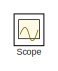
[diagram: root canvas - part 1/3, top left region]
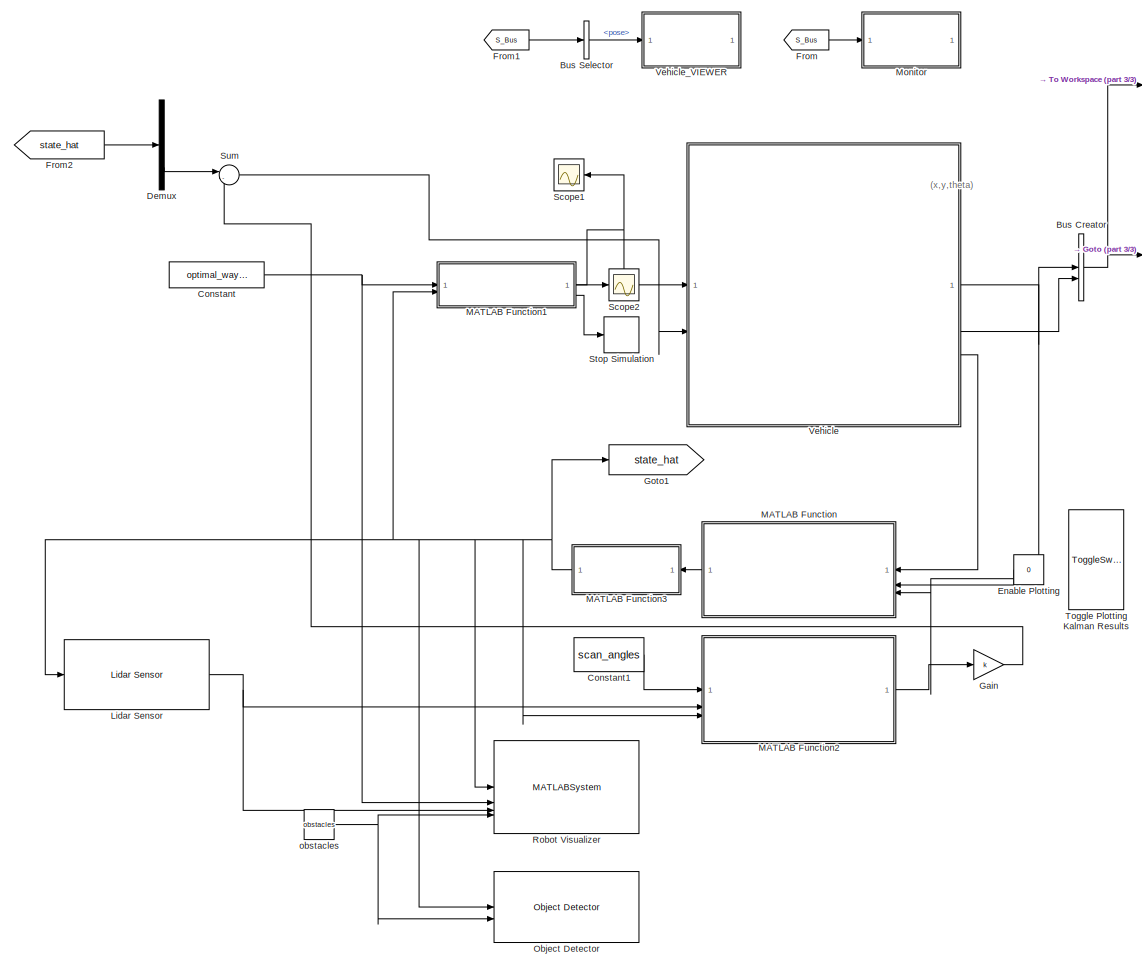
[diagram: root canvas - part 2/3, most of the canvas]
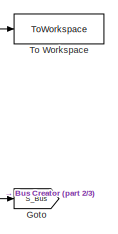
[diagram: root canvas - part 3/3, top right region]
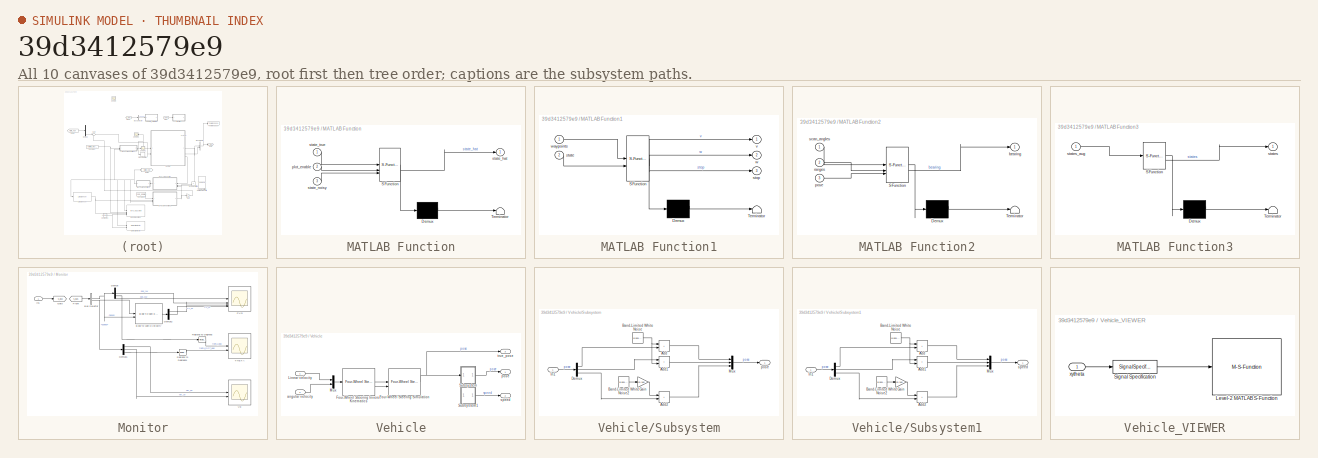
[diagram: thumbnail index - all 10 canvases of the model, root first then tree order]
MODEL slx_39d3412579e9
KIND model
CONFIG AbsTol = auto
CONFIG EnableMultiTasking = on
CONFIG FixedStep = auto
CONFIG InitFcn = mdl_robot;
CONFIG MaxStep = auto
CONFIG MinStep = auto
CONFIG RelTol = 1e-5
CONFIG SampleTimeConstraint = Unconstrained
CONFIG SolverName = ode45
CONFIG StartTime = 0.0
CONFIG StopTime = 2000
BLOCK [BusCreator] Bus Creator
  DisplayOption = bar
  InheritFromInputs = on
  Inputs = 2
BLOCK [BusSelector] Bus Selector
  Commented = on
  OutputSignals = pose
BLOCK [Constant] Constant
  Value = optimal_waypoints
BLOCK [Constant] Constant1
  Value = scan_angles
BLOCK [Demux] Demux
  Outputs = 3
BLOCK [Constant] Enable Plotting
  NameLocation = top
  Value = 0
BLOCK [From] From
  GotoTag = S_Bus
BLOCK [From] From1
  Commented = on
  GotoTag = S_Bus
BLOCK [From] From2
  GotoTag = state_hat
BLOCK [Gain] Gain
  Gain = k
BLOCK [Goto] Goto
  GotoTag = S_Bus
BLOCK [Goto] Goto1
  GotoTag = state_hat
BLOCK [Reference] Lidar Sensor  REF=mobileRoboticsLib/Environments/Lidar Sensor
  SourceBlock = mobileRoboticsLib/Environments/Lidar Sensor
  SourceProductName = Mobile Robotics Simulation Toolbox
  SourceType = LidarSensor
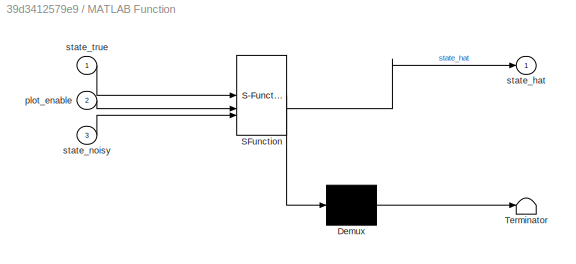
BLOCK [SubSystem] MATLAB Function
  ErrorFcn = Stateflow.Translate.translate
  NameLocation = top
  PermitHierarchicalResolution = ExplicitOnly
  SFBlockType = MATLAB Function
  TreatAsAtomicUnit = on
BLOCK [Demux] MATLAB Function/ Demux 
  Outputs = 1
BLOCK [S-Function] MATLAB Function/ SFunction 
  EnableBusSupport = off
  FunctionName = sf_sfun
  PortCounts = [3 2]
  SFcnIsStateOwnerBlock = off
  SFunctionDeploymentMode = off
  Tag = Stateflow S-Function 1
BLOCK [Terminator] MATLAB Function/ Terminator 
BLOCK [Inport] MATLAB Function/plot_enable
  Port = 2
BLOCK [Outport] MATLAB Function/state_hat
BLOCK [Inport] MATLAB Function/state_noisy
  Port = 3
BLOCK [Inport] MATLAB Function/state_true
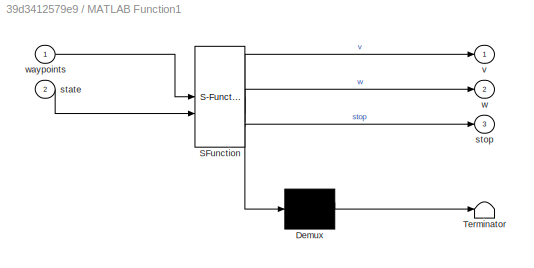
BLOCK [SubSystem] MATLAB Function1
  ErrorFcn = Stateflow.Translate.translate
  PermitHierarchicalResolution = ExplicitOnly
  SFBlockType = MATLAB Function
  TreatAsAtomicUnit = on
BLOCK [Demux] MATLAB Function1/ Demux 
  Outputs = 1
BLOCK [S-Function] MATLAB Function1/ SFunction 
  EnableBusSupport = off
  FunctionName = sf_sfun
  PortCounts = [2 4]
  SFcnIsStateOwnerBlock = off
  SFunctionDeploymentMode = off
  Tag = Stateflow S-Function 2
BLOCK [Terminator] MATLAB Function1/ Terminator 
BLOCK [Inport] MATLAB Function1/state
  Port = 2
BLOCK [Outport] MATLAB Function1/stop
  Port = 3
BLOCK [Outport] MATLAB Function1/v
BLOCK [Outport] MATLAB Function1/w
  Port = 2
BLOCK [Inport] MATLAB Function1/waypoints
BLOCK [SubSystem] MATLAB Function2
  ErrorFcn = Stateflow.Translate.translate
  PermitHierarchicalResolution = ExplicitOnly
  SFBlockType = MATLAB Function
  TreatAsAtomicUnit = on
BLOCK [Demux] MATLAB Function2/ Demux 
  Outputs = 1
BLOCK [S-Function] MATLAB Function2/ SFunction 
  EnableBusSupport = off
  FunctionName = sf_sfun
  PortCounts = [3 2]
  SFcnIsStateOwnerBlock = off
  SFunctionDeploymentMode = off
  Tag = Stateflow S-Function 3
BLOCK [Terminator] MATLAB Function2/ Terminator 
BLOCK [Outport] MATLAB Function2/bearing
BLOCK [Inport] MATLAB Function2/pose
  Port = 3
BLOCK [Inport] MATLAB Function2/ranges
  Port = 2
BLOCK [Inport] MATLAB Function2/scan_angles
BLOCK [SubSystem] MATLAB Function3
  ErrorFcn = Stateflow.Translate.translate
  NameLocation = top
  PermitHierarchicalResolution = ExplicitOnly
  SFBlockType = MATLAB Function
  TreatAsAtomicUnit = on
BLOCK [Demux] MATLAB Function3/ Demux 
  Outputs = 1
BLOCK [S-Function] MATLAB Function3/ SFunction 
  EnableBusSupport = off
  FunctionName = sf_sfun
  PortCounts = [1 2]
  SFcnIsStateOwnerBlock = off
  SFunctionDeploymentMode = off
  Tag = Stateflow S-Function 4
BLOCK [Terminator] MATLAB Function3/ Terminator 
BLOCK [Outport] MATLAB Function3/states
BLOCK [Inport] MATLAB Function3/states_aug
BLOCK [SubSystem] Monitor
  NameLocation = top
BLOCK [Reference] Monitor/Body to World Velocity  REF=mobileRoboticsLib/Utilities/Body to World Velocity
  SourceBlock = mobileRoboticsLib/Utilities/Body to World Velocity
  SourceProductName = Mobile Robotics Simulation Toolbox
  SourceType = Body to World Velocity
BLOCK [BusSelector] Monitor/Bus Selector
  OutputSignals = pose,speed
BLOCK [Demux] Monitor/Demux
  Outputs = 3
BLOCK [Demux] Monitor/Demux1
  Outputs = 3
BLOCK [Demux] Monitor/Demux2
  Outputs = 3
BLOCK [From] Monitor/From
  GotoTag = S_Bus
BLOCK [Goto] Monitor/Goto
  GotoTag = S_Bus
BLOCK [Inport] Monitor/In1
BLOCK [Scope] Monitor/PVG
  ActiveDisplayYMaximum = 27.3548
  ActiveDisplayYMinimum = -3.0236
  DataLoggingVariableName = ScopeData1
  Floating = off
  GraphicalSettings = {"GraphicalSettings":{"LegacySettings":true,"Style":{"AxesScalingProperties":{"AlignXAxis":"Center","AlignYAxis":"Center","AutoScaleXAxisLimits":true,"AxesScaling":"Manual","AxesScalingNumUpdates":10,"ScaleAxesLimitsAtStop":false,"XAxisDataRange":100,"YAxisDataRange":80},"Style":{"AxesColor":"[0 0 0]","ChannelNames":["","","",""],"ColorOrder":"[1 0.909803921568627 0.392156862745098;0.1490196078431...<+769ch>
  LayoutDimensionsString = [2 2]
  MultipleDisplayCache = [{"MaxYLimMag":27.3548,"MaxYLimReal":27.3548,"MinYLimMag":0,"MinYLimReal":-3.0236,"PlotAsMagnitudePhase":false,"ShowGrid":true,"ShowLegend":false,"Title":"%<SignalLabel>","YLabel":""},{"MaxYLimMag":10,"MaxYLimReal":6.3182,"MinYLimMag":0,"MinYLimReal":-0.92897,"PlotAsMagnitudePhase":false,"ShowGrid":true,"ShowLegend":false,"Title":"%<SignalLabel>","YLabel":""},{"MaxYLimMag":10,"MaxYLimReal":0.82886...<+319ch>
  NameLocation = top
  NumInputPorts = 4
  WasSavedAsWebScope = on
  WindowPosition = [23 187 730 610]
BLOCK [Reference] Monitor/Radians to Degrees  REF=simulink_extras/Transformations/Radians
to Degrees
  SourceBlock = simulink_extras/Transformations/Radians\nto Degrees
  SourceType = RadiansToDegrees
BLOCK [Reference] Monitor/Radians to Degrees1  REF=simulink_extras/Transformations/Radians
to Degrees
  SourceBlock = simulink_extras/Transformations/Radians\nto Degrees
  SourceType = RadiansToDegrees
BLOCK [Scope] Monitor/THETA
  ActiveDisplayYMaximum = 60.0661
  ActiveDisplayYMinimum = -8.7294
  DataLoggingVariableName = ScopeData2
  Floating = off
  GraphicalSettings = {"GraphicalSettings":{"LegacySettings":true,"Style":{"AxesScalingProperties":{"AlignXAxis":"Center","AlignYAxis":"Center","AutoScaleXAxisLimits":true,"AxesScaling":"Manual","AxesScalingNumUpdates":10,"ScaleAxesLimitsAtStop":false,"XAxisDataRange":100,"YAxisDataRange":80},"Style":{"AxesColor":"[0 0 0]","ChannelNames":["","",""],"ColorOrder":"[1 0.909803921568627 0.392156862745098;0.149019607843137 ...<+738ch>
  LayoutDimensionsString = [3 1]
  MultipleDisplayCache = [{"MaxYLimMag":60.0661,"MaxYLimReal":60.0661,"MinYLimMag":0,"MinYLimReal":-8.7294,"PlotAsMagnitudePhase":false,"ShowGrid":true,"ShowLegend":false,"Title":"%<SignalLabel>","YLabel":""},{"MaxYLimMag":10,"MaxYLimReal":6.486,"MinYLimMag":0,"MinYLimReal":-5.0711,"PlotAsMagnitudePhase":false,"ShowGrid":true,"ShowLegend":false,"Title":"%<SignalLabel>","YLabel":""},{"MaxYLimMag":10,"MaxYLimReal":0.11,"Min...<+132ch>
  NumInputPorts = 2
  WasSavedAsWebScope = on
  WindowPosition = [111 139 1218 622]
BLOCK [Scope] Monitor/Vb
  ActiveDisplayYMaximum = 0.8929
  ActiveDisplayYMinimum = 0.05577
  DataLoggingVariableName = ScopeData1
  Floating = off
  GraphicalSettings = {"GraphicalSettings":{"LegacySettings":true,"Style":{"AxesScalingProperties":{"AlignXAxis":"Center","AlignYAxis":"Center","AutoScaleXAxisLimits":true,"AxesScaling":"Manual","AxesScalingNumUpdates":10,"ScaleAxesLimitsAtStop":false,"XAxisDataRange":100,"YAxisDataRange":80},"Style":{"AxesColor":"[0 0 0]","ChannelNames":["","",""],"ColorOrder":"[1 0.909803921568627 0.392156862745098;0.149019607843137 ...<+738ch>
  LayoutDimensionsString = [3 1]
  MultipleDisplayCache = [{"MaxYLimMag":0.8929,"MaxYLimReal":0.8929,"MinYLimMag":0.05577,"MinYLimReal":0.05577,"PlotAsMagnitudePhase":false,"ShowGrid":true,"ShowLegend":false,"Title":"%<SignalLabel>","YLabel":""},{"MaxYLimMag":10,"MaxYLimReal":0.39508,"MinYLimMag":0,"MinYLimReal":-0.44205,"PlotAsMagnitudePhase":false,"ShowGrid":true,"ShowLegend":false,"Title":"%<SignalLabel>","YLabel":""},{"MaxYLimMag":10,"MaxYLimReal":0....<+139ch>
  NumInputPorts = 2
  WasSavedAsWebScope = on
  WindowPosition = [111 139 1218 622]
BLOCK [Reference] Object Detector  REF=mobileRoboticsLib/Environments/Object Detector
  SourceBlock = mobileRoboticsLib/Environments/Object Detector
  SourceProductName = Mobile Robotics Simulation Toolbox
  SourceType = ObjectDetector
BLOCK [MATLABSystem] Robot Visualizer
  MaskType = Visualizer2D
  System = Visualizer2D
  hasLidar = on
  hasObjDetector = on
  hasWaypoints = on
  mapName = map
  objDetectorAngle = 0
  objDetectorFOV = pi / 4
  objDetectorMaxRange = 5
  objDetectorOffset = [ 0, 0 ]
  objectColors = [ 1, 0, 0; 0, 1, 0; 0, 0, 1 ]
  objectMarkers = s
  robotRadius = 0.25
  scanAngles = scan_angles
  sensorOffset = [ 0, 0 ]
  showTrajectory = on
BLOCK [Scope] Scope
  ActiveDisplayYMaximum = 0.09
  ActiveDisplayYMinimum = 0.07
  DataLoggingVariableName = ScopeData1
  Floating = off
  GraphicalSettings = {"GraphicalSettings":{"LegacySettings":true,"Style":{"AxesScalingProperties":{"AlignXAxis":"Center","AlignYAxis":"Center","AutoScaleXAxisLimits":true,"AxesScaling":"Manual","AxesScalingNumUpdates":10,"ScaleAxesLimitsAtStop":false,"XAxisDataRange":100,"YAxisDataRange":80},"Style":{"AxesColor":"[0 0 0]","ChannelNames":["",""],"ColorOrder":"[1 0.909803921568627 0.392156862745098;0.149019607843137 0.5...<+746ch>
  IOType = viewer
  LayoutDimensionsString = [2 1]
  MultipleDisplayCache = [{"MaxYLimMag":10,"MaxYLimReal":0.09,"MinYLimMag":0,"MinYLimReal":0.07,"PlotAsMagnitudePhase":false,"ShowGrid":true,"ShowLegend":false,"Title":"%<SignalLabel>","YLabel":""},{"MaxYLimMag":2.4981,"MaxYLimReal":2.4981,"MinYLimMag":0,"MinYLimReal":-0.27861,"PlotAsMagnitudePhase":false,"ShowGrid":true,"ShowLegend":false,"Title":"%<SignalLabel>","YLabel":""}]
  NumInputPorts = 1
  WasSavedAsWebScope = on
BLOCK [Scope] Scope1
  ActiveDisplayYMaximum = 11.25
  ActiveDisplayYMinimum = -1.25
  DataLoggingVariableName = ScopeData1
  Floating = off
  GraphicalSettings = {"GraphicalSettings":{"LegacySettings":true,"Style":{"AxesScalingProperties":{"AlignXAxis":"Center","AlignYAxis":"Center","AutoScaleXAxisLimits":true,"AxesScaling":"Manual","AxesScalingNumUpdates":10,"ScaleAxesLimitsAtStop":true,"XAxisDataRange":100,"YAxisDataRange":80},"Style":{"AxesColor":"[0 0 0]","ChannelNames":[""],"ColorOrder":"[1 0.909803921568627 0.392156862745098;0.149019607843137 0.54901...<+714ch>
  LayoutDimensionsString = [1 1]
  MultipleDisplayCache = [{"MaxYLimMag":11.25,"MaxYLimReal":11.25,"MinYLimMag":0,"MinYLimReal":-1.25,"PlotAsMagnitudePhase":false,"ShowGrid":true,"ShowLegend":false,"Title":"%<SignalLabel>","YLabel":""}]
  NameLocation = top
  NumInputPorts = 1
  WasSavedAsWebScope = on
BLOCK [Scope] Scope2
  DataLoggingVariableName = ScopeData2
  Floating = off
  GraphicalSettings = {"GraphicalSettings":{"LegacySettings":true,"Style":{"AxesScalingProperties":{"AlignXAxis":"Center","AlignYAxis":"Center","AutoScaleXAxisLimits":true,"AxesScaling":"Manual","AxesScalingNumUpdates":10,"ScaleAxesLimitsAtStop":true,"XAxisDataRange":100,"YAxisDataRange":80},"Style":{"ChannelNames":[""],"CurrentConfiguration":"extmgr.ConfigurationSet","DefaultLegendLabel":[""],"LineColor":[""],"LineSty...<+260ch>
  LayoutDimensionsString = [1 1]
  NumInputPorts = 1
  WasSavedAsWebScope = on
BLOCK [Stop] Stop Simulation
BLOCK [Sum] Sum
  Inputs = |-+
BLOCK [ToWorkspace] To Workspace
  FixptAsFi = on
  MaxDataPoints = inf
  SampleTime = -1
  SaveFormat = Timeseries
  VariableName = simout
BLOCK [ToggleSwitchBlock] Toggle Plotting Kalman Results
BLOCK [SubSystem] Vehicle
BLOCK [Reference] Vehicle/Four-Wheel Steering Inverse Kinematics  REF=mobileRoboticsLib/Kinematic Models/Four-Wheel Steering/Four-Wheel Steering
Inverse Kinematics
  SourceBlock = mobileRoboticsLib/Kinematic Models/Four-Wheel Steering/Four-Wheel Steering\nInverse Kinematics
  SourceProductName = Mobile Robotics Simulation Toolbox
  SourceType = Four-Wheel Steering Inverse Kinematics
BLOCK [Reference] Vehicle/Four-Wheel Steering Simulation  REF=mobileRoboticsLib/Kinematic Models/Four-Wheel Steering/Four-Wheel Steering Simulation
  SourceBlock = mobileRoboticsLib/Kinematic Models/Four-Wheel Steering/Four-Wheel Steering Simulation
  SourceProductName = Mobile Robotics Simulation Toolbox
  SourceType = Four-Wheel Steering Simulation
BLOCK [Inport] Vehicle/Linear velocity
BLOCK [Mux] Vehicle/Mux
  DisplayOption = bar
  Inputs = 2
BLOCK [SubSystem] Vehicle/Subsystem
  Permissions = ReadOnly
BLOCK [Sum] Vehicle/Subsystem/Add
  IconShape = rectangular
BLOCK [Sum] Vehicle/Subsystem/Add1
  IconShape = rectangular
BLOCK [Sum] Vehicle/Subsystem/Add2
  IconShape = rectangular
BLOCK [Reference] Vehicle/Subsystem/Band-Limited White Noise  REF=simulink/Sources/Band-Limited
White Noise
  SourceBlock = simulink/Sources/Band-Limited\nWhite Noise
  SourceType = Band-Limited White Noise.
BLOCK [Reference] Vehicle/Subsystem/Band-Limited White Noise2  REF=simulink/Sources/Band-Limited
White Noise
  SourceBlock = simulink/Sources/Band-Limited\nWhite Noise
  SourceType = Band-Limited White Noise.
BLOCK [Demux] Vehicle/Subsystem/Demux
  Outputs = 3
BLOCK [Gain] Vehicle/Subsystem/Gain
  Gain = pi/180
BLOCK [Inport] Vehicle/Subsystem/In1
BLOCK [Mux] Vehicle/Subsystem/Mux
  DisplayOption = bar
  Inputs = 3
BLOCK [Outport] Vehicle/Subsystem/pose
BLOCK [SubSystem] Vehicle/Subsystem1
  Permissions = ReadOnly
BLOCK [Sum] Vehicle/Subsystem1/Add
  IconShape = rectangular
BLOCK [Sum] Vehicle/Subsystem1/Add1
  IconShape = rectangular
BLOCK [Sum] Vehicle/Subsystem1/Add2
  IconShape = rectangular
BLOCK [Reference] Vehicle/Subsystem1/Band-Limited White Noise  REF=simulink/Sources/Band-Limited
White Noise
  SourceBlock = simulink/Sources/Band-Limited\nWhite Noise
  SourceType = Band-Limited White Noise.
BLOCK [Reference] Vehicle/Subsystem1/Band-Limited White Noise2  REF=simulink/Sources/Band-Limited
White Noise
  SourceBlock = simulink/Sources/Band-Limited\nWhite Noise
  SourceType = Band-Limited White Noise.
BLOCK [Demux] Vehicle/Subsystem1/Demux
  Outputs = 3
BLOCK [Gain] Vehicle/Subsystem1/Gain
  Gain = pi/180
BLOCK [Inport] Vehicle/Subsystem1/In1
BLOCK [Mux] Vehicle/Subsystem1/Mux
  DisplayOption = bar
  Inputs = 3
BLOCK [Outport] Vehicle/Subsystem1/speed
BLOCK [Inport] Vehicle/angular velocity
  Port = 2
BLOCK [Outport] Vehicle/pose
  VectorParamsAs1DForOutWhenUnconnected = off
BLOCK [Outport] Vehicle/speed
  Port = 2
BLOCK [Outport] Vehicle/true_pose
  Port = 3
  VectorParamsAs1DForOutWhenUnconnected = off
BLOCK [SubSystem] Vehicle_VIEWER
  Commented = on
  NameLocation = top
BLOCK [M-S-Function] Vehicle_VIEWER/Level-2 MATLAB S-Function
  FunctionName = bh_ddr_animate_sfun
  Parameters = Ts, wp_mat, veh_ID_num, veh_init_xytheta
BLOCK [SignalSpecification] Vehicle_VIEWER/Signal Specification
  Dimensions = 3
BLOCK [Inport] Vehicle_VIEWER/xytheta
BLOCK [Constant] obstacles
  Value = obstacles
ANNOTATION (root): (x,y,theta)
NET Bus Creator:1 -> Goto:1, To Workspace:1
LINE Bus Selector:1 -> Vehicle_VIEWER:1
LINE Constant1:1 -> MATLAB Function2:1
NET Constant:1 -> MATLAB Function1:1, Robot Visualizer:2
LINE Demux:3 -> Sum:1
LINE Enable Plotting:1 -> MATLAB Function:2
LINE From1:1 -> Bus Selector:1
LINE From2:1 -> Demux:1
LINE From:1 -> Monitor:1
LINE Gain:1 -> Sum:2
NET Lidar Sensor:1 -> MATLAB Function2:2, Robot Visualizer:3
NET MATLAB Function1:1 -> Scope1:1, Vehicle:1
LINE MATLAB Function1:2 -> Scope2:1
LINE MATLAB Function1:3 -> Stop Simulation:1
LINE MATLAB Function2:1 -> Gain:1
NET MATLAB Function3:1 -> Goto1:1, Lidar Sensor:1, MATLAB Function1:2, MATLAB Function2:3, Object Detector:1, Robot Visualizer:1
LINE MATLAB Function:1 -> MATLAB Function3:1
LINE Monitor/Body to World Velocity:1 -> Monitor/Demux2:1
NET Monitor/Bus Selector:1 -> Monitor/Body to World Velocity:2, Monitor/Demux:1
NET Monitor/Bus Selector:2 -> Monitor/Body to World Velocity:1, Monitor/Demux1:1
LINE Monitor/Demux1:1 -> Monitor/Vb:1
LINE Monitor/Demux1:2 -> Monitor/Vb:2
LINE Monitor/Demux1:3 -> Monitor/Radians to Degrees1:1
LINE Monitor/Demux2:1 -> Monitor/PVG:3
LINE Monitor/Demux2:2 -> Monitor/PVG:4
LINE Monitor/Demux:1 -> Monitor/PVG:1
LINE Monitor/Demux:2 -> Monitor/PVG:2
LINE Monitor/Demux:3 -> Monitor/Radians to Degrees:1
LINE Monitor/From:1 -> Monitor/Bus Selector:1
LINE Monitor/In1:1 -> Monitor/Goto:1
LINE Monitor/Radians to Degrees1:1 -> Monitor/THETA:2
LINE Monitor/Radians to Degrees:1 -> Monitor/THETA:1
LINE Sum:1 -> Vehicle:2
LINE Vehicle/Four-Wheel Steering Inverse Kinematics:1 -> Vehicle/Four-Wheel Steering Simulation:1
LINE Vehicle/Four-Wheel Steering Inverse Kinematics:2 -> Vehicle/Four-Wheel Steering Simulation:2
NET Vehicle/Four-Wheel Steering Simulation:1 -> Vehicle/Subsystem:1, Vehicle/true_pose:1
LINE Vehicle/Linear velocity:1 -> Vehicle/Mux:1
LINE Vehicle/Mux:1 -> Vehicle/Four-Wheel Steering Inverse Kinematics:1
LINE Vehicle/Subsystem/Add1:1 -> Vehicle/Subsystem/Mux:2
LINE Vehicle/Subsystem/Add2:1 -> Vehicle/Subsystem/Mux:3
LINE Vehicle/Subsystem/Add:1 -> Vehicle/Subsystem/Mux:1
LINE Vehicle/Subsystem/Band-Limited White Noise2:1 -> Vehicle/Subsystem/Gain:1
NET Vehicle/Subsystem/Band-Limited White Noise:1 -> Vehicle/Subsystem/Add1:2, Vehicle/Subsystem/Add:1
LINE Vehicle/Subsystem/Demux:1 -> Vehicle/Subsystem/Add:2
LINE Vehicle/Subsystem/Demux:2 -> Vehicle/Subsystem/Add1:1
LINE Vehicle/Subsystem/Demux:3 -> Vehicle/Subsystem/Add2:2
LINE Vehicle/Subsystem/Gain:1 -> Vehicle/Subsystem/Add2:1
LINE Vehicle/Subsystem/In1:1 -> Vehicle/Subsystem/Demux:1
LINE Vehicle/Subsystem/Mux:1 -> Vehicle/Subsystem/pose:1
LINE Vehicle/Subsystem1/Add1:1 -> Vehicle/Subsystem1/Mux:2
LINE Vehicle/Subsystem1/Add2:1 -> Vehicle/Subsystem1/Mux:3
LINE Vehicle/Subsystem1/Add:1 -> Vehicle/Subsystem1/Mux:1
LINE Vehicle/Subsystem1/Band-Limited White Noise2:1 -> Vehicle/Subsystem1/Gain:1
NET Vehicle/Subsystem1/Band-Limited White Noise:1 -> Vehicle/Subsystem1/Add1:2, Vehicle/Subsystem1/Add:1
LINE Vehicle/Subsystem1/Demux:1 -> Vehicle/Subsystem1/Add:2
LINE Vehicle/Subsystem1/Demux:2 -> Vehicle/Subsystem1/Add1:1
LINE Vehicle/Subsystem1/Demux:3 -> Vehicle/Subsystem1/Add2:2
LINE Vehicle/Subsystem1/Gain:1 -> Vehicle/Subsystem1/Add2:1
LINE Vehicle/Subsystem1/In1:1 -> Vehicle/Subsystem1/Demux:1
LINE Vehicle/Subsystem1/Mux:1 -> Vehicle/Subsystem1/speed:1
LINE Vehicle/Subsystem1:1 -> Vehicle/speed:1
LINE Vehicle/Subsystem:1 -> Vehicle/pose:1
LINE Vehicle/angular velocity:1 -> Vehicle/Mux:2
NET Vehicle:1 -> Bus Creator:1, MATLAB Function:3
LINE Vehicle:2 -> Bus Creator:2
LINE Vehicle:3 -> MATLAB Function:1
LINE Vehicle_VIEWER/Signal Specification:1 -> Vehicle_VIEWER/Level-2 MATLAB S-Function:1
LINE Vehicle_VIEWER/xytheta:1 -> Vehicle_VIEWER/Signal Specification:1
NET obstacles:1 -> Object Detector:2, Robot Visualizer:4
note: NET lines group one-source signal fan-out (src -> all destinations, sorted); 1:1 wires keep LINE
CHART MATLAB Function states=1 transitions=1
  STATE_LABEL 'eML_blk_kernel()'
  STATE_LABEL 'SCRIPT:\nfunction state_hat  = f_kalman_filter(state_true, plot_enable, state_noisy)\n    [state_hat, k_gain] = kalman_filter(state_noisy);\n    persistent idx initialised x_plot y_plot theta_plot error_plot k_plot fig_error fig_analysis max_plot state_true_plot\n    if isempty(initialised)\n        initialised = 0;\n        max_plot = 1000;\n        idx = 0;\n        x_plot = zeros(1, max_plot);\n        ...<+3608ch>'
CHART MATLAB Function1 states=1 transitions=1
  STATE_LABEL 'eML_blk_kernel()'
  STATE_LABEL 'SCRIPT:\nfunction [v, w, stop] = f_rvwp(waypoints, state)\n    [v, w, stop] = rvwp(waypoints, state);\nend'
CHART MATLAB Function2 states=1 transitions=1
  STATE_LABEL 'eML_blk_kernel()'
  STATE_LABEL 'SCRIPT:\nfunction bearing  = vfh(scan_angles, ranges, pose)\n    % Number of bins for histogram (angle sectors)\n    num_bins = 30;  \n    threshold = 1.0;  % Threshold to classify as free or occupied\n    \n    % Step 1: Create a histogram (Polar Histogram)\n    histogram = zeros(1, num_bins); \n    for i = 1:length(scan_angles)\n        % Wrap angles to the range [0, 2*pi) to ensure valid bin indexing\n  ...<+1183ch>'
CHART MATLAB Function3 states=1 transitions=1
  STATE_LABEL 'eML_blk_kernel()'
  STATE_LABEL 'SCRIPT:\nfunction states = extract_states(states_aug)\n    states = states_aug(1:3);\nend'
CHART  states=0 transitions=0
CHART  states=0 transitions=0
CHART  states=0 transitions=0
CHART  states=0 transitions=0
